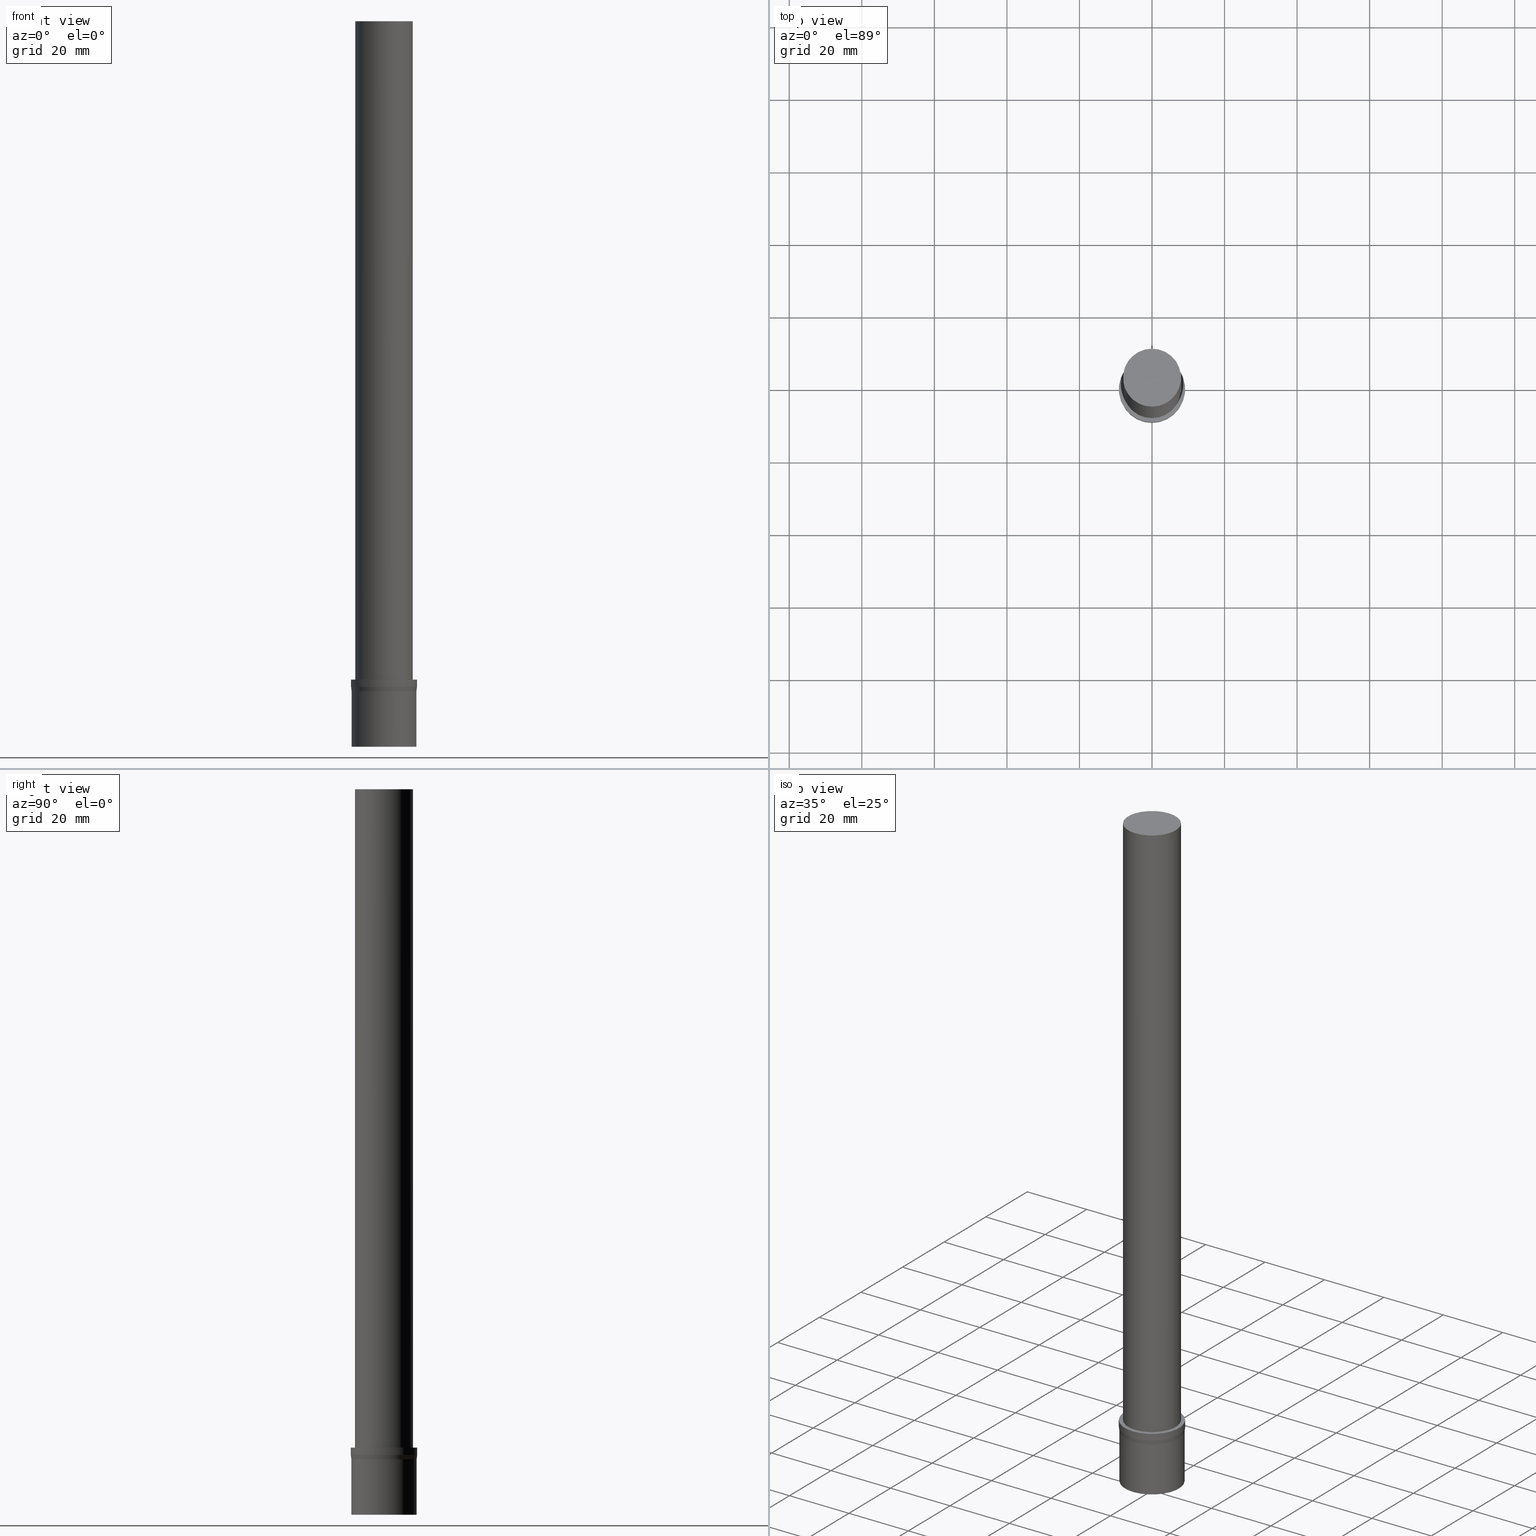
[diagram: canonical four-view strip — front | top / right | iso, engineering-drawing reading convention]
A machine part, canonical four-view strip (front | top / right | iso — engineering-drawing reading convention). The complete STEP part file that produces these views, byte-faithful:
ISO-10303-21;
HEADER;
FILE_DESCRIPTION((''),'1');
FILE_NAME('U:/Translate/00_BIG-HP\X2\FF71FF6FFF8CFF9F\X0\2013/\X2\30C030A630F330ED30FC30C930C730FC30BF\X0\/Vol9\X2\4EE5964D63B28F094E885B9A\X0\/STEP_\X2\FF82FF70FF98FF9DFF78FF9E7DE8\X0\Vol9-1\X2\4EE5964D63B28F094E885B9A\X0\/ST16-MEGA8S-200.stp','2014-12-04T02:07:39',(''),(''),'Spatial Interop R21 SP3','Kubotek KeyCreator 2011 V10.0.2 (22737)',' ');
FILE_SCHEMA(('automotive_design'));
ENDSEC;
DATA;
#1=MECHANICAL_DESIGN_GEOMETRIC_PRESENTATION_REPRESENTATION(' ',(#10,#11,#12,#13,#14,#15,#16,#17,#18,#19,#20,#21,#22,#23),#6);
#2=PRODUCT_DEFINITION_CONTEXT('',#24,'design');
#3=APPLICATION_PROTOCOL_DEFINITION('INTERNATIONAL STANDARD','automotive_design',1994,#24);
#4=PRODUCT_CATEGORY_RELATIONSHIP('NONE','NONE',#25,#26);
#5=SHAPE_DEFINITION_REPRESENTATION(#27,#28);
#6= (GEOMETRIC_REPRESENTATION_CONTEXT(3)GLOBAL_UNCERTAINTY_ASSIGNED_CONTEXT((#31))GLOBAL_UNIT_ASSIGNED_CONTEXT((#33,#34,#35))REPRESENTATION_CONTEXT('NONE','WORKSPACE'));
#10=STYLED_ITEM('',(#37,#38),#39);
#11=STYLED_ITEM('',(#40,#41),#42);
#12=STYLED_ITEM('',(#43,#44),#45);
#13=STYLED_ITEM('',(#46),#47);
#14=STYLED_ITEM('',(#48,#49),#50);
#15=STYLED_ITEM('',(#51),#52);
#16=STYLED_ITEM('',(#53),#54);
#17=STYLED_ITEM('',(#55),#56);
#18=STYLED_ITEM('',(#57),#58);
#19=STYLED_ITEM('',(#59,#60),#61);
#20=STYLED_ITEM('',(#62,#63),#64);
#21=STYLED_ITEM('',(#65,#66),#67);
#22=STYLED_ITEM('',(#68),#69);
#23=STYLED_ITEM('',(#70,#71),#72);
#24=APPLICATION_CONTEXT(' ');
#25=PRODUCT_CATEGORY('part','NONE');
#26=PRODUCT_RELATED_PRODUCT_CATEGORY('detail',' ',(#73));
#27=PRODUCT_DEFINITION_SHAPE('NONE','NONE',#74);
#28=ADVANCED_BREP_SHAPE_REPRESENTATION('Unnamed[1]',(#64,#75),#6);
#31=UNCERTAINTY_MEASURE_WITH_UNIT(LENGTH_MEASURE(1.0E-006),#33,'','');
#33= (CONVERSION_BASED_UNIT('MILLIMETRE',#78)LENGTH_UNIT()NAMED_UNIT(#81));
#34= (NAMED_UNIT(#83)PLANE_ANGLE_UNIT()SI_UNIT($,.RADIAN.));
#35= (NAMED_UNIT(#83)SOLID_ANGLE_UNIT()SI_UNIT($,.STERADIAN.));
#37=PRESENTATION_STYLE_ASSIGNMENT((#89));
#38=PRESENTATION_STYLE_ASSIGNMENT((#90));
#39=ADVANCED_FACE('Unnamed[1]',(#91,#92),#93,.T.);
#40=PRESENTATION_STYLE_ASSIGNMENT((#94));
#41=PRESENTATION_STYLE_ASSIGNMENT((#95));
#42=ADVANCED_FACE('Unnamed[1]',(#96,#97),#98,.T.);
#43=PRESENTATION_STYLE_ASSIGNMENT((#99));
#44=PRESENTATION_STYLE_ASSIGNMENT((#100));
#45=ADVANCED_FACE('Unnamed[1]',(#101),#102,.T.);
#46=PRESENTATION_STYLE_ASSIGNMENT((#103));
#47=EDGE_CURVE('Unnamed[1]',#104,#104,#105,.T.);
#48=PRESENTATION_STYLE_ASSIGNMENT((#106));
#49=PRESENTATION_STYLE_ASSIGNMENT((#107));
#50=ADVANCED_FACE('Unnamed[1]',(#108),#109,.T.);
#51=PRESENTATION_STYLE_ASSIGNMENT((#110));
#52=EDGE_CURVE('Unnamed[1]',#111,#111,#112,.T.);
#53=PRESENTATION_STYLE_ASSIGNMENT((#113));
#54=EDGE_CURVE('Unnamed[1]',#114,#114,#115,.T.);
#55=PRESENTATION_STYLE_ASSIGNMENT((#116));
#56=EDGE_CURVE('Unnamed[1]',#117,#117,#118,.T.);
#57=PRESENTATION_STYLE_ASSIGNMENT((#119));
#58=EDGE_CURVE('Unnamed[1]',#120,#120,#121,.T.);
#59=PRESENTATION_STYLE_ASSIGNMENT((#122));
#60=PRESENTATION_STYLE_ASSIGNMENT((#123));
#61=ADVANCED_FACE('Unnamed[1]',(#124,#125),#126,.T.);
#62=PRESENTATION_STYLE_ASSIGNMENT((#127));
#63=PRESENTATION_STYLE_ASSIGNMENT((#128));
#64=MANIFOLD_SOLID_BREP('Unnamed[1]',#129);
#65=PRESENTATION_STYLE_ASSIGNMENT((#130));
#66=PRESENTATION_STYLE_ASSIGNMENT((#131));
#67=ADVANCED_FACE('Unnamed[1]',(#132,#133),#134,.T.);
#68=PRESENTATION_STYLE_ASSIGNMENT((#135));
#69=EDGE_CURVE('Unnamed[1]',#136,#136,#137,.T.);
#70=PRESENTATION_STYLE_ASSIGNMENT((#138));
#71=PRESENTATION_STYLE_ASSIGNMENT((#139));
#72=ADVANCED_FACE('Unnamed[1]',(#140,#141),#142,.T.);
#73=PRODUCT('Unnamed[1]','Unnamed[1]','PART-Unnamed[1]-DESC',(#143));
#74=PRODUCT_DEFINITION('NONE','NONE',#144,#2);
#75=AXIS2_PLACEMENT_3D('',#145,#146,#147);
#78=LENGTH_MEASURE_WITH_UNIT(LENGTH_MEASURE(1.0),#148);
#81=DIMENSIONAL_EXPONENTS(1.0,0.0,0.0,0.0,0.0,0.0,0.0);
#83=DIMENSIONAL_EXPONENTS(0.0,0.0,0.0,0.0,0.0,0.0,0.0);
#89=SURFACE_STYLE_USAGE(.BOTH.,#149);
#90=CURVE_STYLE('',#150,POSITIVE_LENGTH_MEASURE(1000.0),#151);
#91=FACE_BOUND('',#152,.T.);
#92=FACE_BOUND('',#153,.T.);
#93=CONICAL_SURFACE('',#154,9.07500000000098,0.124354994546783);
#94=SURFACE_STYLE_USAGE(.BOTH.,#155);
#95=CURVE_STYLE('',#156,POSITIVE_LENGTH_MEASURE(1000.0),#157);
#96=FACE_OUTER_BOUND('',#158,.T.);
#97=FACE_BOUND('',#159,.T.);
#98=PLANE('',#160);
#99=SURFACE_STYLE_USAGE(.BOTH.,#161);
#100=CURVE_STYLE('',#162,POSITIVE_LENGTH_MEASURE(1000.0),#163);
#101=FACE_OUTER_BOUND('',#164,.T.);
#102=PLANE('',#165);
#103=CURVE_STYLE('',#166,POSITIVE_LENGTH_MEASURE(1000.0),#167);
#104=VERTEX_POINT('',#168);
#105=CIRCLE('',#169,9.00000000000097);
#106=SURFACE_STYLE_USAGE(.BOTH.,#170);
#107=CURVE_STYLE('',#171,POSITIVE_LENGTH_MEASURE(1000.0),#172);
#108=FACE_OUTER_BOUND('',#173,.T.);
#109=PLANE('',#174);
#110=CURVE_STYLE('',#175,POSITIVE_LENGTH_MEASURE(1000.0),#176);
#111=VERTEX_POINT('',#177);
#112=CIRCLE('',#178,9.150000000001);
#113=CURVE_STYLE('',#179,POSITIVE_LENGTH_MEASURE(1000.0),#180);
#114=VERTEX_POINT('',#181);
#115=CIRCLE('',#182,9.000000000001);
#116=CURVE_STYLE('',#183,POSITIVE_LENGTH_MEASURE(1000.0),#184);
#117=VERTEX_POINT('',#185);
#118=CIRCLE('',#186,9.150000000001);
#119=CURVE_STYLE('',#187,POSITIVE_LENGTH_MEASURE(1000.0),#188);
#120=VERTEX_POINT('',#189);
#121=CIRCLE('',#190,8.0);
#122=SURFACE_STYLE_USAGE(.BOTH.,#191);
#123=CURVE_STYLE('',#192,POSITIVE_LENGTH_MEASURE(1000.0),#193);
#124=FACE_BOUND('',#194,.T.);
#125=FACE_BOUND('',#195,.T.);
#126=CYLINDRICAL_SURFACE('',#196,9.00000000000098);
#127=SURFACE_STYLE_USAGE(.BOTH.,#197);
#128=CURVE_STYLE('',#198,POSITIVE_LENGTH_MEASURE(1000.0),#199);
#129=CLOSED_SHELL('',(#50,#72,#42,#67,#39,#61,#45));
#130=SURFACE_STYLE_USAGE(.BOTH.,#200);
#131=CURVE_STYLE('',#201,POSITIVE_LENGTH_MEASURE(1000.0),#202);
#132=FACE_BOUND('',#203,.T.);
#133=FACE_BOUND('',#204,.T.);
#134=CYLINDRICAL_SURFACE('',#205,9.150000000001);
#135=CURVE_STYLE('',#206,POSITIVE_LENGTH_MEASURE(1000.0),#207);
#136=VERTEX_POINT('',#208);
#137=CIRCLE('',#209,8.00000000000003);
#138=SURFACE_STYLE_USAGE(.BOTH.,#210);
#139=CURVE_STYLE('',#211,POSITIVE_LENGTH_MEASURE(1000.0),#212);
#140=FACE_BOUND('',#213,.T.);
#141=FACE_BOUND('',#214,.T.);
#142=CYLINDRICAL_SURFACE('',#215,8.00000000000001);
#143=PRODUCT_CONTEXT('',#24,'mechanical');
#144=PRODUCT_DEFINITION_FORMATION_WITH_SPECIFIED_SOURCE(' ','NONE',#73,.NOT_KNOWN.);
#145=CARTESIAN_POINT('',(0.0,0.0,0.0));
#146=DIRECTION('',(0.0,0.0,1.0));
#147=DIRECTION('',(1.0,0.0,0.0));
#148= (NAMED_UNIT(#81)LENGTH_UNIT()SI_UNIT(.MILLI.,.METRE.));
#149=SURFACE_SIDE_STYLE('',(#217));
#150=DRAUGHTING_PRE_DEFINED_CURVE_FONT('continuous');
#151=COLOUR_RGB('',0.0,1.0,0.0);
#152=EDGE_LOOP('',(#218));
#153=EDGE_LOOP('',(#219));
#154=AXIS2_PLACEMENT_3D('',#220,#221,#222);
#155=SURFACE_SIDE_STYLE('',(#223));
#156=DRAUGHTING_PRE_DEFINED_CURVE_FONT('continuous');
#157=COLOUR_RGB('',0.0,1.0,0.0);
#158=EDGE_LOOP('',(#224));
#159=EDGE_LOOP('',(#225));
#160=AXIS2_PLACEMENT_3D('',#226,#227,#228);
#161=SURFACE_SIDE_STYLE('',(#229));
#162=DRAUGHTING_PRE_DEFINED_CURVE_FONT('continuous');
#163=COLOUR_RGB('',0.0,1.0,0.0);
#164=EDGE_LOOP('',(#230));
#165=AXIS2_PLACEMENT_3D('',#231,#232,#233);
#166=DRAUGHTING_PRE_DEFINED_CURVE_FONT('continuous');
#167=COLOUR_RGB('',0.0,1.0,0.0);
#168=CARTESIAN_POINT('',(-9.36854801347719E-016,9.00000000000096,15.2999999999999));
#169=AXIS2_PLACEMENT_3D('',#234,#235,#236);
#170=SURFACE_SIDE_STYLE('',(#237));
#171=DRAUGHTING_PRE_DEFINED_CURVE_FONT('continuous');
#172=COLOUR_RGB('',0.0,1.0,0.0);
#173=EDGE_LOOP('',(#238));
#174=AXIS2_PLACEMENT_3D('',#239,#240,#241);
#175=DRAUGHTING_PRE_DEFINED_CURVE_FONT('continuous');
#176=COLOUR_RGB('',0.0,1.0,0.0);
#177=CARTESIAN_POINT('',(-1.13279828921129E-015,9.150000000001,18.4999999999999));
#178=AXIS2_PLACEMENT_3D('',#242,#243,#244);
#179=DRAUGHTING_PRE_DEFINED_CURVE_FONT('continuous');
#180=COLOUR_RGB('',0.0,1.0,0.0);
#181=CARTESIAN_POINT('',(-4.46175299982677E-030,9.00000000000099,7.21564556952428E-014));
#182=AXIS2_PLACEMENT_3D('',#245,#246,#247);
#183=DRAUGHTING_PRE_DEFINED_CURVE_FONT('continuous');
#184=COLOUR_RGB('',0.0,1.0,0.0);
#185=CARTESIAN_POINT('',(-1.01033360929657E-015,9.150000000001,16.5));
#186=AXIS2_PLACEMENT_3D('',#248,#249,#250);
#187=DRAUGHTING_PRE_DEFINED_CURVE_FONT('continuous');
#188=COLOUR_RGB('',0.0,1.0,0.0);
#189=CARTESIAN_POINT('',(-1.22464679914735E-014,7.99999999999994,200.0));
#190=AXIS2_PLACEMENT_3D('',#251,#252,#253);
#191=SURFACE_SIDE_STYLE('',(#254));
#192=DRAUGHTING_PRE_DEFINED_CURVE_FONT('continuous');
#193=COLOUR_RGB('',0.0,1.0,0.0);
#194=EDGE_LOOP('',(#255));
#195=EDGE_LOOP('',(#256));
#196=AXIS2_PLACEMENT_3D('',#257,#258,#259);
#197=SURFACE_SIDE_STYLE('',(#260));
#198=DRAUGHTING_PRE_DEFINED_CURVE_FONT('continuous');
#199=COLOUR_RGB('',0.0,1.0,0.0);
#200=SURFACE_SIDE_STYLE('',(#261));
#201=DRAUGHTING_PRE_DEFINED_CURVE_FONT('continuous');
#202=COLOUR_RGB('',0.0,1.0,0.0);
#203=EDGE_LOOP('',(#262));
#204=EDGE_LOOP('',(#263));
#205=AXIS2_PLACEMENT_3D('',#264,#265,#266);
#206=DRAUGHTING_PRE_DEFINED_CURVE_FONT('continuous');
#207=COLOUR_RGB('',0.0,1.0,0.0);
#208=CARTESIAN_POINT('',(-1.13279828921131E-015,8.00000000000003,18.5000000000001));
#209=AXIS2_PLACEMENT_3D('',#267,#268,#269);
#210=SURFACE_SIDE_STYLE('',(#270));
#211=DRAUGHTING_PRE_DEFINED_CURVE_FONT('continuous');
#212=COLOUR_RGB('',0.0,1.0,0.0);
#213=EDGE_LOOP('',(#271));
#214=EDGE_LOOP('',(#272));
#215=AXIS2_PLACEMENT_3D('',#273,#274,#275);
#217=SURFACE_STYLE_FILL_AREA(#276);
#218=ORIENTED_EDGE('',*,*,#47,.F.);
#219=ORIENTED_EDGE('',*,*,#56,.T.);
#220=CARTESIAN_POINT('',(-9.73594205322142E-016,-5.25733978549421E-015,15.8999999999999));
#221=DIRECTION('',(-6.12323399573676E-017,-2.62119965380345E-016,1.0));
#222=DIRECTION('',(-2.08773715605518E-032,1.0,2.62119965380345E-016));
#223=SURFACE_STYLE_FILL_AREA(#277);
#224=ORIENTED_EDGE('',*,*,#52,.F.);
#225=ORIENTED_EDGE('',*,*,#69,.T.);
#226=CARTESIAN_POINT('',(-1.1327982892113E-015,8.57500000000051,18.5));
#227=DIRECTION('',(-6.12323399573677E-017,1.60521979926581E-013,1.0));
#228=DIRECTION('',(-9.8243092927634E-030,-1.0,1.60521979926581E-013));
#229=SURFACE_STYLE_FILL_AREA(#278);
#230=ORIENTED_EDGE('',*,*,#54,.T.);
#231=CARTESIAN_POINT('',(-2.23087649991338E-030,4.5000000000005,3.60782278476214E-014));
#232=DIRECTION('',(6.12323399573677E-017,8.0173839661372E-015,-1.0));
#233=DIRECTION('',(-4.95750333314031E-031,1.0,8.0173839661372E-015));
#234=CARTESIAN_POINT('',(-9.36854801347719E-016,-5.100067806266E-015,15.2999999999999));
#235=DIRECTION('',(6.12323399573677E-017,2.62119965380345E-016,-1.0));
#236=DIRECTION('',(-2.08773715605518E-032,1.0,2.62119965380345E-016));
#237=SURFACE_STYLE_FILL_AREA(#279);
#238=ORIENTED_EDGE('',*,*,#58,.F.);
#239=CARTESIAN_POINT('',(-1.22464679914735E-014,3.99999999999994,200.0));
#240=DIRECTION('',(-6.12323399573677E-017,6.98296267768627E-015,1.0));
#241=DIRECTION('',(-4.22755991858927E-031,-1.0,6.98296267768627E-015));
#242=CARTESIAN_POINT('',(-1.13279828921129E-015,-5.9388516954831E-015,18.4999999999999));
#243=DIRECTION('',(6.12323399573677E-017,2.62119965380345E-016,-1.0));
#244=DIRECTION('',(-2.08773715605518E-032,1.0,2.62119965380345E-016));
#245=CARTESIAN_POINT('',(-4.27385665578178E-030,-1.08963233594676E-015,6.97973760068194E-014));
#246=DIRECTION('',(6.12323399573677E-017,2.62119965380345E-016,-1.0));
#247=DIRECTION('',(-2.08773715605518E-032,1.0,2.62119965380345E-016));
#248=CARTESIAN_POINT('',(-1.01033360929657E-015,-5.41461176472243E-015,16.5));
#249=DIRECTION('',(6.12323399573677E-017,2.62119965380345E-016,-1.0));
#250=DIRECTION('',(-2.08773715605518E-032,1.0,2.62119965380345E-016));
#251=CARTESIAN_POINT('',(-1.22464679914735E-014,-5.35136254120158E-014,200.0));
#252=DIRECTION('',(6.12323399573677E-017,2.62119965380345E-016,-1.0));
#253=DIRECTION('',(-2.08773715605518E-032,1.0,2.62119965380345E-016));
#254=SURFACE_STYLE_FILL_AREA(#280);
#255=ORIENTED_EDGE('',*,*,#54,.F.);
#256=ORIENTED_EDGE('',*,*,#47,.T.);
#257=CARTESIAN_POINT('',(-4.68427400673862E-016,-3.09485007110638E-015,7.64999999999998));
#258=DIRECTION('',(6.12323399573677E-017,2.62119965380345E-016,-1.0));
#259=DIRECTION('',(-2.08773715605518E-032,1.0,2.62119965380345E-016));
#260=SURFACE_STYLE_FILL_AREA(#281);
#261=SURFACE_STYLE_FILL_AREA(#282);
#262=ORIENTED_EDGE('',*,*,#56,.F.);
#263=ORIENTED_EDGE('',*,*,#52,.T.);
#264=CARTESIAN_POINT('',(-1.07156594925393E-015,-5.67673173010276E-015,17.4999999999999));
#265=DIRECTION('',(6.12323399573677E-017,2.62119965380345E-016,-1.0));
#266=DIRECTION('',(-2.08773715605518E-032,1.0,2.62119965380345E-016));
#267=CARTESIAN_POINT('',(-1.13279828921131E-015,-5.93885169548314E-015,18.5000000000001));
#268=DIRECTION('',(6.12323399573677E-017,2.62119965380345E-016,-1.0));
#269=DIRECTION('',(-2.08773715605518E-032,1.0,2.62119965380345E-016));
#270=SURFACE_STYLE_FILL_AREA(#283);
#271=ORIENTED_EDGE('',*,*,#69,.F.);
#272=ORIENTED_EDGE('',*,*,#58,.T.);
#273=CARTESIAN_POINT('',(-6.68963314034242E-015,-2.97262385537495E-014,109.25));
#274=DIRECTION('',(6.12323399573677E-017,2.62119965380345E-016,-1.0));
#275=DIRECTION('',(-2.08773715605518E-032,1.0,2.62119965380345E-016));
#276=FILL_AREA_STYLE('',(#284));
#277=FILL_AREA_STYLE('',(#285));
#278=FILL_AREA_STYLE('',(#286));
#279=FILL_AREA_STYLE('',(#287));
#280=FILL_AREA_STYLE('',(#288));
#281=FILL_AREA_STYLE('',(#289));
#282=FILL_AREA_STYLE('',(#290));
#283=FILL_AREA_STYLE('',(#291));
#284=FILL_AREA_STYLE_COLOUR('',#292);
#285=FILL_AREA_STYLE_COLOUR('',#293);
#286=FILL_AREA_STYLE_COLOUR('',#294);
#287=FILL_AREA_STYLE_COLOUR('',#295);
#288=FILL_AREA_STYLE_COLOUR('',#296);
#289=FILL_AREA_STYLE_COLOUR('',#297);
#290=FILL_AREA_STYLE_COLOUR('',#298);
#291=FILL_AREA_STYLE_COLOUR('',#299);
#292=COLOUR_RGB('',0.0,1.0,0.0);
#293=COLOUR_RGB('',0.0,1.0,0.0);
#294=COLOUR_RGB('',0.0,1.0,0.0);
#295=COLOUR_RGB('',0.0,1.0,0.0);
#296=COLOUR_RGB('',0.0,1.0,0.0);
#297=COLOUR_RGB('',0.0,1.0,0.0);
#298=COLOUR_RGB('',0.0,1.0,0.0);
#299=COLOUR_RGB('',0.0,1.0,0.0);
ENDSEC;
END-ISO-10303-21;
